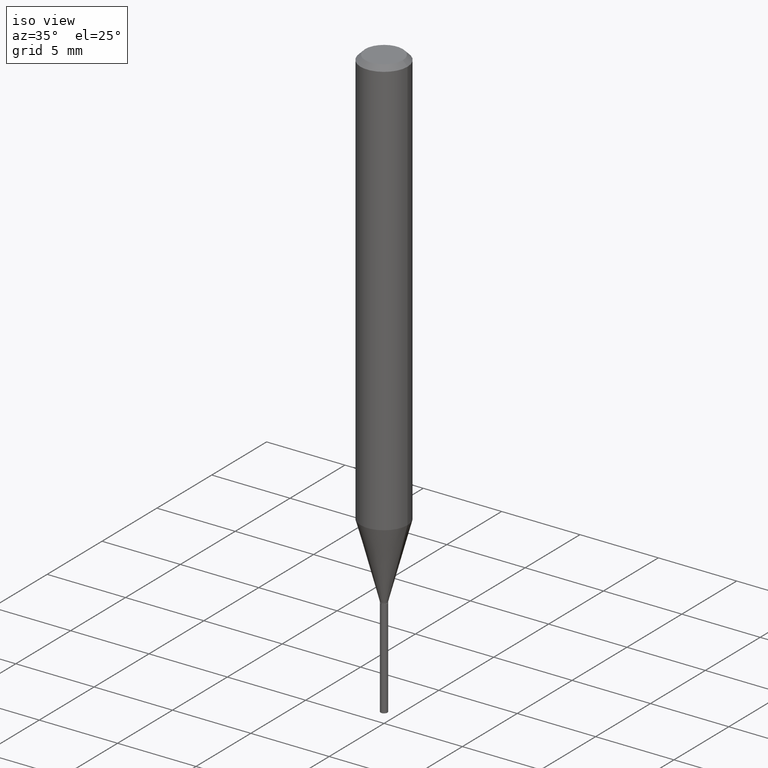
[diagram: clean part render]
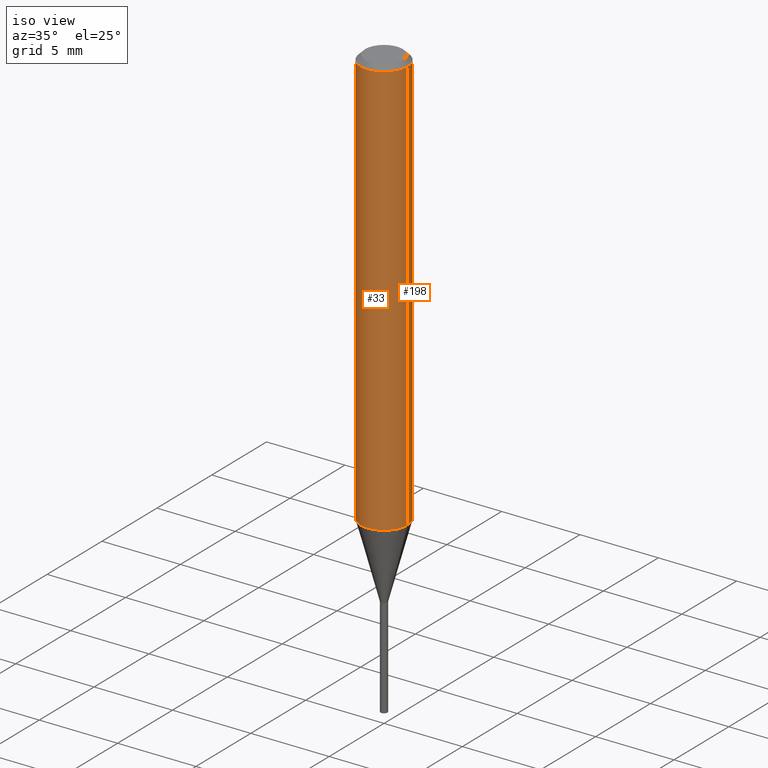
[diagram: same view with one multi-face feature highlighted, each face labeled with its STEP entity id]
A machine part, iso view. The highlighted faces form ONE feature: a constant-radius fillet chain: 2 tangent blend faces with common blend radius 1.4999 mm. The faces share edges in the B-rep.
Their STEP definitions:
[1] entity #33 (Cylinder):
#14 = ORIENTED_EDGE ( 'NONE', *, *, #324, .F. ) ;
#33 = ADVANCED_FACE ( 'NONE', ( #196 ), #345, .T. ) ;
#40 = ORIENTED_EDGE ( 'NONE', *, *, #359, .F. ) ;
#91 = EDGE_CURVE ( 'NONE', #153, #273, #239, .T. ) ;
#93 = VECTOR ( 'NONE', #419, 39.37007874015748143 ) ;
#102 = ORIENTED_EDGE ( 'NONE', *, *, #91, .T. ) ;
#141 = DIRECTION ( 'NONE',  ( -2.445468806185136597E-29, 3.491481338843145583E-15, 1.000000000000000000 ) ) ;
#143 = DIRECTION ( 'NONE',  ( 1.000000000000000000, -6.982962677686266711E-15, 4.876176775795936353E-29 ) ) ;
#153 = VERTEX_POINT ( 'NONE', #286 ) ;
#172 = CIRCLE ( 'NONE', #485, 0.05904999999999999832 ) ;
#184 = LINE ( 'NONE', #426, #219 ) ;
#187 = DIRECTION ( 'NONE',  ( 1.000000000000000000, -6.982962677686266711E-15, 0.000000000000000000 ) ) ;
#193 = VERTEX_POINT ( 'NONE', #433 ) ;
#196 = FACE_OUTER_BOUND ( 'NONE', #415, .T. ) ;
#200 = AXIS2_PLACEMENT_3D ( 'NONE', #220, #339, #372 ) ;
#219 = VECTOR ( 'NONE', #333, 39.37007874015748143 ) ;
#220 = CARTESIAN_POINT ( 'NONE',  ( 2.574487409809273648E-29, -3.675685711345442861E-15, -1.052758229137014556 ) ) ;
#239 = CIRCLE ( 'NONE', #200, 0.05905000000000013710 ) ;
#273 = VERTEX_POINT ( 'NONE', #347 ) ;
#286 = CARTESIAN_POINT ( 'NONE',  ( -0.05905000000000013710, -3.256110225879102579E-15, -1.052758229137014556 ) ) ;
#292 = CARTESIAN_POINT ( 'NONE',  ( -0.05905000000000006771, 4.195754854663396409E-16, -2.904631170795525045E-30 ) ) ;
#297 = CARTESIAN_POINT ( 'NONE',  ( -0.05904999999999999832, -1.438884567512250013E-15, -0.01181000000000007218 ) ) ;
#301 = AXIS2_PLACEMENT_3D ( 'NONE', #490, #447, #143 ) ;
#324 = EDGE_CURVE ( 'NONE', #394, #193, #172, .T. ) ;
#333 = DIRECTION ( 'NONE',  ( -2.445468806185136877E-29, 3.491481338843145188E-15, 1.000000000000000000 ) ) ;
#339 = DIRECTION ( 'NONE',  ( -2.445468806185136597E-29, 3.491481338843145583E-15, 1.000000000000000000 ) ) ;
#345 = CYLINDRICAL_SURFACE ( 'NONE', #301, 0.05905000000000006771 ) ;
#347 = CARTESIAN_POINT ( 'NONE',  ( 0.05905000000000013710, -4.088029657462817781E-15, -1.052758229137014556 ) ) ;
#359 = EDGE_CURVE ( 'NONE', #153, #394, #368, .T. ) ;
#368 = LINE ( 'NONE', #292, #93 ) ;
#372 = DIRECTION ( 'NONE',  ( 1.000000000000000000, -6.982962677686264344E-15, 0.000000000000000000 ) ) ;
#389 = EDGE_CURVE ( 'NONE', #273, #193, #184, .T. ) ;
#394 = VERTEX_POINT ( 'NONE', #297 ) ;
#415 = EDGE_LOOP ( 'NONE', ( #40, #102, #472, #14 ) ) ;
#419 = DIRECTION ( 'NONE',  ( -2.445468806185136877E-29, 3.491481338843145188E-15, 1.000000000000000000 ) ) ;
#426 = CARTESIAN_POINT ( 'NONE',  ( 0.05905000000000006771, -4.123439461173745257E-16, 2.879382386107503723E-30 ) ) ;
#433 = CARTESIAN_POINT ( 'NONE',  ( 0.05904999999999999832, -4.535783407291118600E-16, -0.01181000000000007218 ) ) ;
#447 = DIRECTION ( 'NONE',  ( -2.445468806185136597E-29, 3.491481338843145583E-15, 1.000000000000000000 ) ) ;
#472 = ORIENTED_EDGE ( 'NONE', *, *, #389, .T. ) ;
#479 = CARTESIAN_POINT ( 'NONE',  ( 2.888098660104664204E-31, -4.123439461173780263E-17, -0.01181000000000007218 ) ) ;
#485 = AXIS2_PLACEMENT_3D ( 'NONE', #479, #141, #187 ) ;
#490 = CARTESIAN_POINT ( 'NONE',  ( 0.000000000000000000, 0.000000000000000000, 0.000000000000000000 ) ) ;
[2] entity #198 (Cylinder):
#12 = CIRCLE ( 'NONE', #211, 0.05904999999999999832 ) ;
#31 = ORIENTED_EDGE ( 'NONE', *, *, #254, .T. ) ;
#34 = CARTESIAN_POINT ( 'NONE',  ( 2.574487409809273648E-29, -3.675685711345442861E-15, -1.052758229137014556 ) ) ;
#93 = VECTOR ( 'NONE', #419, 39.37007874015748143 ) ;
#115 = DIRECTION ( 'NONE',  ( 1.000000000000000000, -6.982962677686264344E-15, 0.000000000000000000 ) ) ;
#120 = AXIS2_PLACEMENT_3D ( 'NONE', #34, #482, #115 ) ;
#153 = VERTEX_POINT ( 'NONE', #286 ) ;
#166 = CARTESIAN_POINT ( 'NONE',  ( 2.888098660104664204E-31, -4.123439461173780263E-17, -0.01181000000000007218 ) ) ;
#184 = LINE ( 'NONE', #426, #219 ) ;
#185 = DIRECTION ( 'NONE',  ( -2.445468806185136597E-29, 3.491481338843145583E-15, 1.000000000000000000 ) ) ;
#193 = VERTEX_POINT ( 'NONE', #433 ) ;
#198 = ADVANCED_FACE ( 'NONE', ( #244 ), #284, .T. ) ;
#207 = CIRCLE ( 'NONE', #120, 0.05905000000000013710 ) ;
#211 = AXIS2_PLACEMENT_3D ( 'NONE', #166, #307, #236 ) ;
#219 = VECTOR ( 'NONE', #333, 39.37007874015748143 ) ;
#231 = EDGE_CURVE ( 'NONE', #193, #394, #12, .T. ) ;
#236 = DIRECTION ( 'NONE',  ( 1.000000000000000000, -6.982962677686266711E-15, 0.000000000000000000 ) ) ;
#244 = FACE_OUTER_BOUND ( 'NONE', #264, .T. ) ;
#248 = CARTESIAN_POINT ( 'NONE',  ( 0.000000000000000000, 0.000000000000000000, 0.000000000000000000 ) ) ;
#254 = EDGE_CURVE ( 'NONE', #273, #153, #207, .T. ) ;
#264 = EDGE_LOOP ( 'NONE', ( #31, #427, #454, #459 ) ) ;
#273 = VERTEX_POINT ( 'NONE', #347 ) ;
#284 = CYLINDRICAL_SURFACE ( 'NONE', #483, 0.05905000000000006771 ) ;
#286 = CARTESIAN_POINT ( 'NONE',  ( -0.05905000000000013710, -3.256110225879102579E-15, -1.052758229137014556 ) ) ;
#292 = CARTESIAN_POINT ( 'NONE',  ( -0.05905000000000006771, 4.195754854663396409E-16, -2.904631170795525045E-30 ) ) ;
#297 = CARTESIAN_POINT ( 'NONE',  ( -0.05904999999999999832, -1.438884567512250013E-15, -0.01181000000000007218 ) ) ;
#307 = DIRECTION ( 'NONE',  ( -2.445468806185136597E-29, 3.491481338843145583E-15, 1.000000000000000000 ) ) ;
#333 = DIRECTION ( 'NONE',  ( -2.445468806185136877E-29, 3.491481338843145188E-15, 1.000000000000000000 ) ) ;
#347 = CARTESIAN_POINT ( 'NONE',  ( 0.05905000000000013710, -4.088029657462817781E-15, -1.052758229137014556 ) ) ;
#359 = EDGE_CURVE ( 'NONE', #153, #394, #368, .T. ) ;
#368 = LINE ( 'NONE', #292, #93 ) ;
#389 = EDGE_CURVE ( 'NONE', #273, #193, #184, .T. ) ;
#394 = VERTEX_POINT ( 'NONE', #297 ) ;
#419 = DIRECTION ( 'NONE',  ( -2.445468806185136877E-29, 3.491481338843145188E-15, 1.000000000000000000 ) ) ;
#426 = CARTESIAN_POINT ( 'NONE',  ( 0.05905000000000006771, -4.123439461173745257E-16, 2.879382386107503723E-30 ) ) ;
#427 = ORIENTED_EDGE ( 'NONE', *, *, #359, .T. ) ;
#433 = CARTESIAN_POINT ( 'NONE',  ( 0.05904999999999999832, -4.535783407291118600E-16, -0.01181000000000007218 ) ) ;
#443 = DIRECTION ( 'NONE',  ( 1.000000000000000000, -6.982962677686266711E-15, 4.876176775795936353E-29 ) ) ;
#454 = ORIENTED_EDGE ( 'NONE', *, *, #231, .F. ) ;
#459 = ORIENTED_EDGE ( 'NONE', *, *, #389, .F. ) ;
#482 = DIRECTION ( 'NONE',  ( -2.445468806185136597E-29, 3.491481338843145583E-15, 1.000000000000000000 ) ) ;
#483 = AXIS2_PLACEMENT_3D ( 'NONE', #248, #185, #443 ) ;